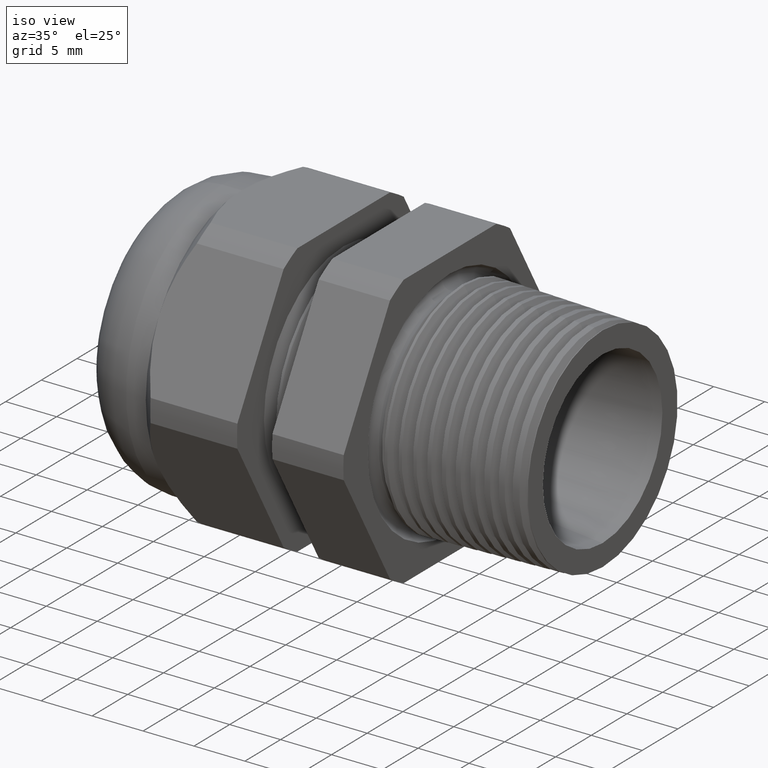
[diagram: clean part render]
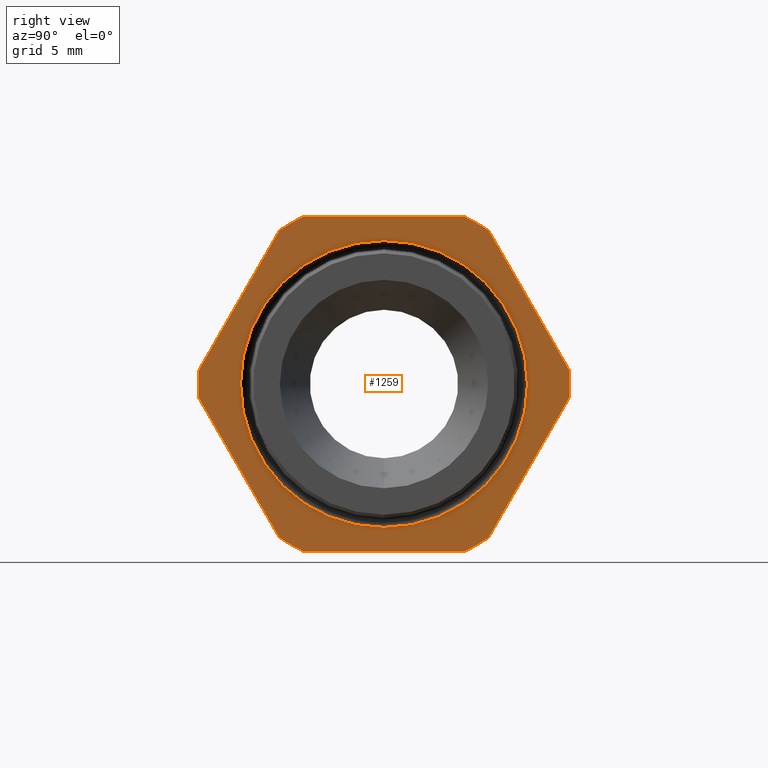
[diagram: tour spotlight — one face highlighted and labeled with its STEP entity id]
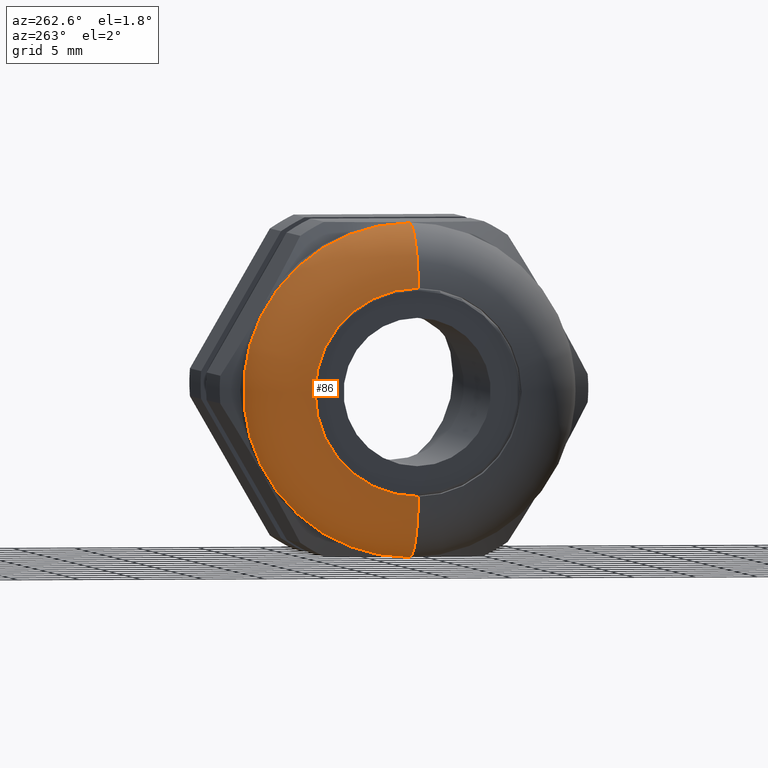
[diagram: tour spotlight — one face highlighted and labeled with its STEP entity id]
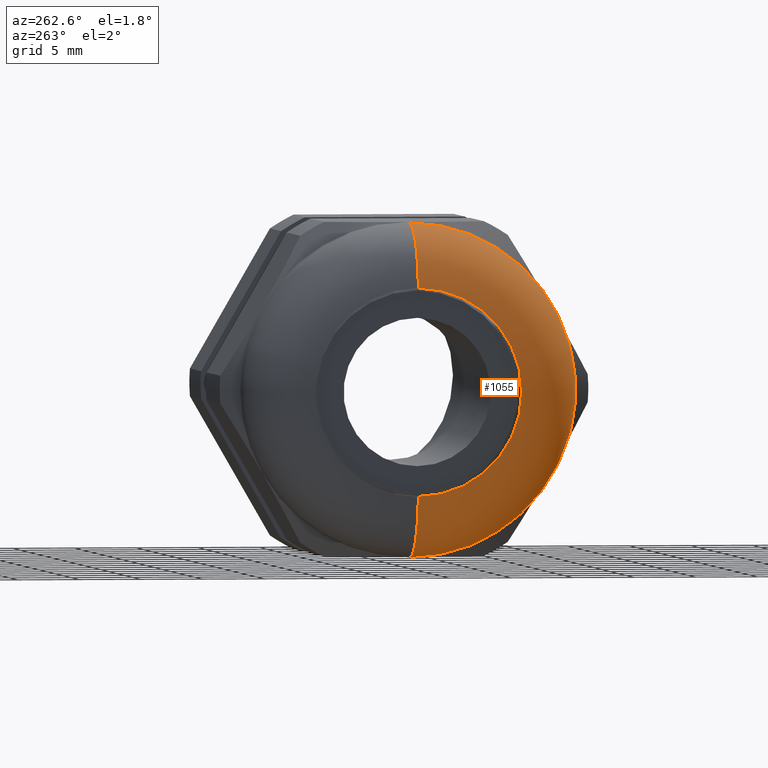
[diagram: tour spotlight — one face highlighted and labeled with its STEP entity id]
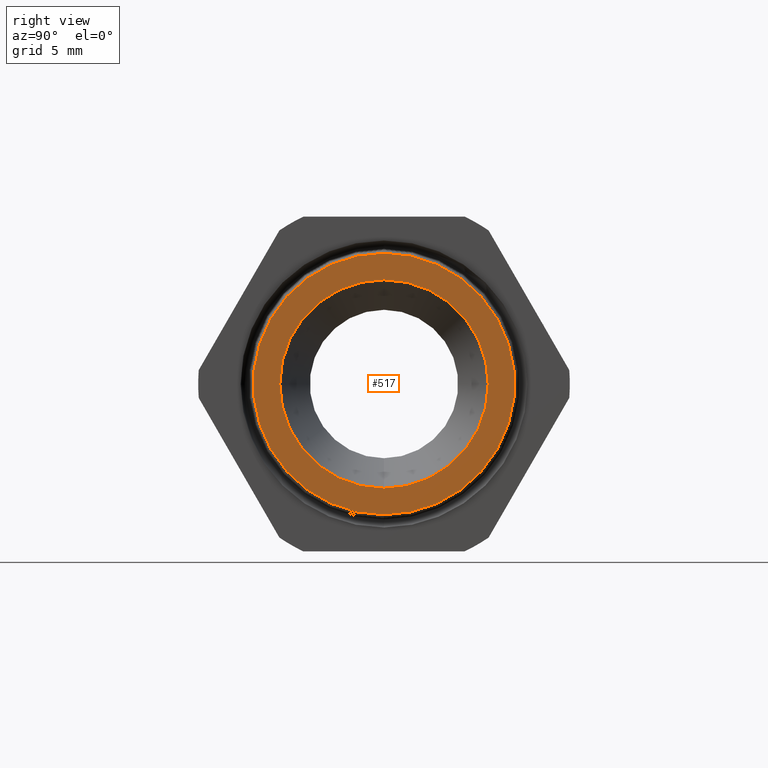
[diagram: tour spotlight — one face highlighted and labeled with its STEP entity id]
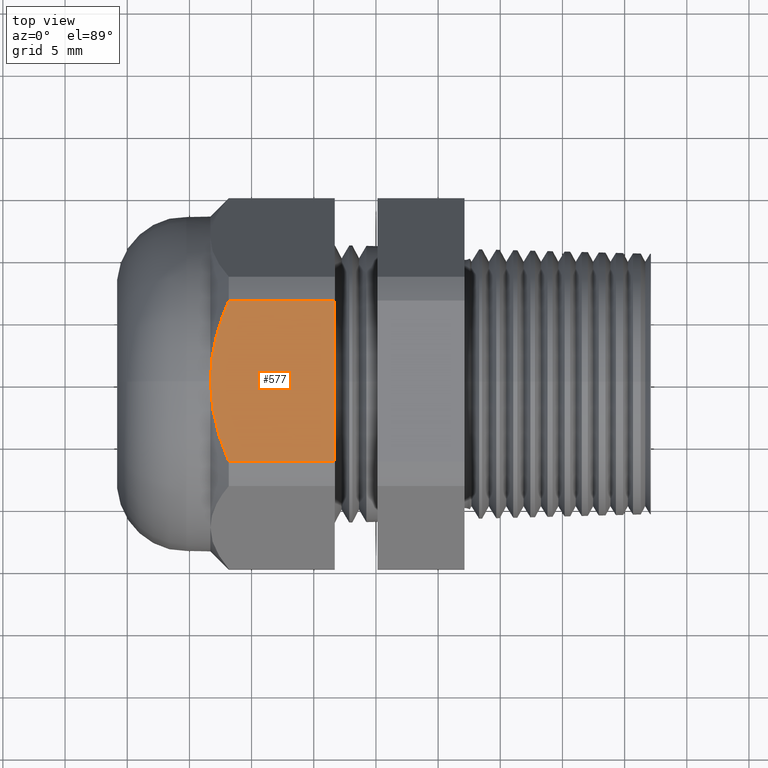
[diagram: tour spotlight — one face highlighted and labeled with its STEP entity id]
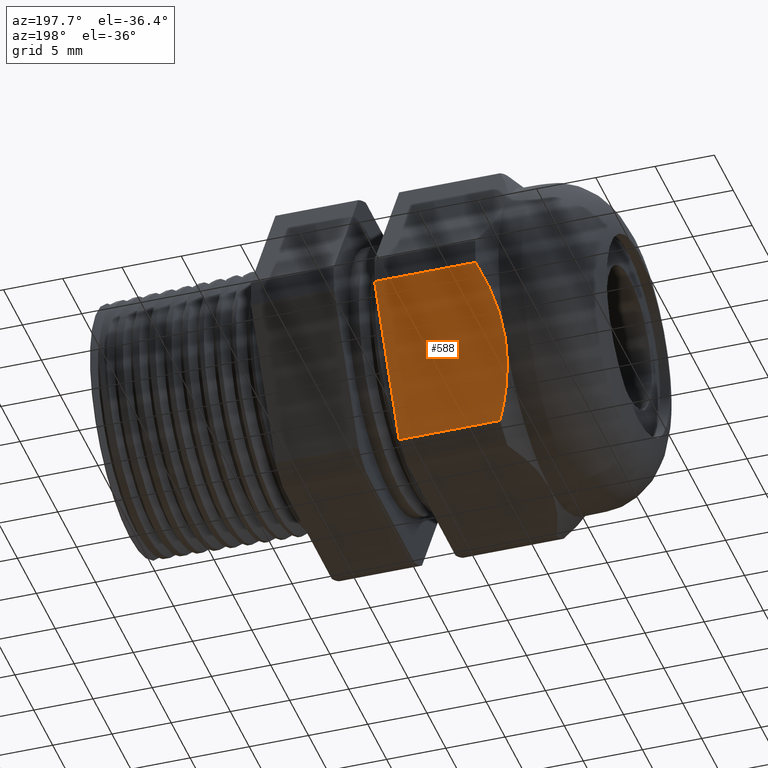
[diagram: tour spotlight — one face highlighted and labeled with its STEP entity id]
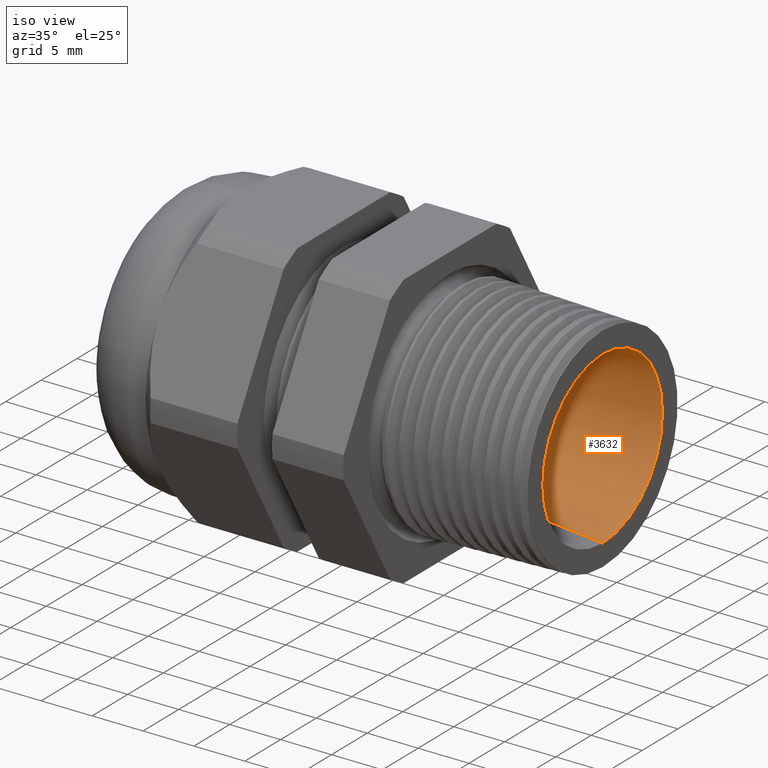
[diagram: tour spotlight — one face highlighted and labeled with its STEP entity id]
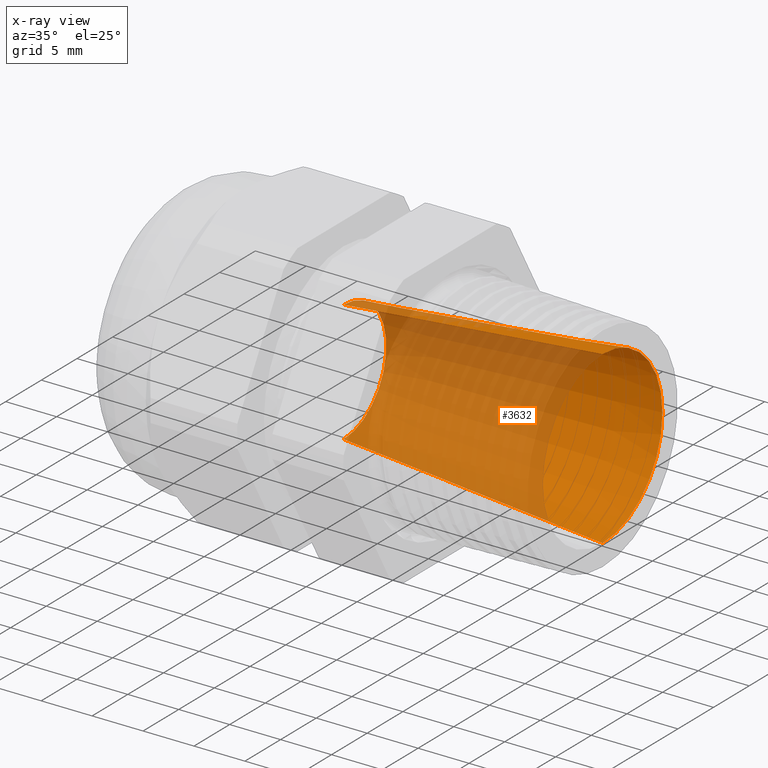
[diagram: x-ray of the same camera — body ghosted, this tour face saturated]
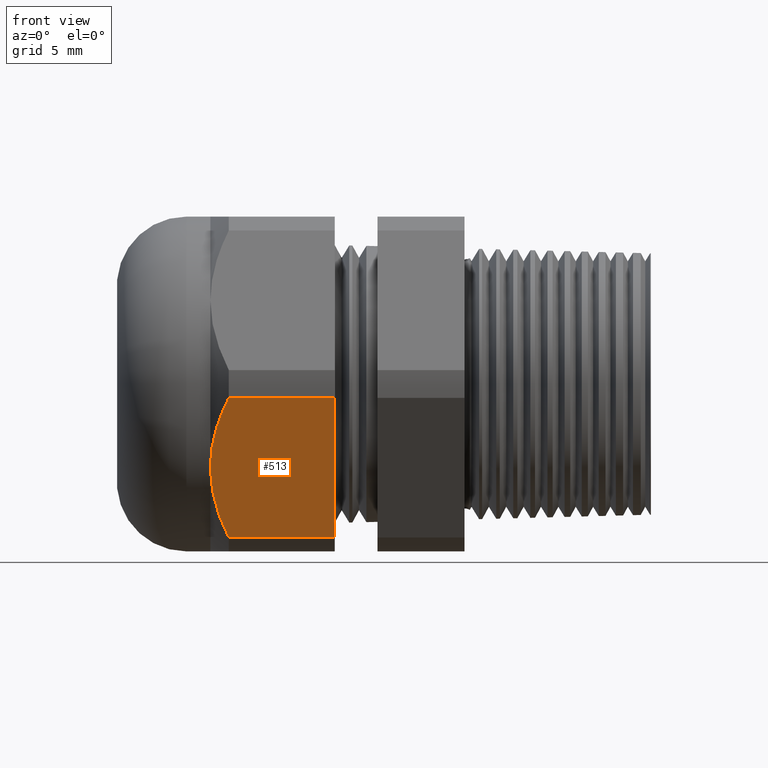
[diagram: tour spotlight — one face highlighted and labeled with its STEP entity id]
A machine part: a face-by-face anatomy tour. The part has 135 B-rep faces; the first image is the clean iso view, then the 8 largest visible faces are spotlighted one at a time (largest first), each with its STEP entity span.

Face 1 — right view, entity #1259. In plain terms, the highlighted planar face has unit normal (1, 0, 0).
Definition (entity closure, byte-faithful):
#87 = EDGE_CURVE ( 'NONE', #131, #129, #1436, .T. ) ;
#129 = VERTEX_POINT ( 'NONE', #1545 ) ;
#131 = VERTEX_POINT ( 'NONE', #1544 ) ;
#1142 = VERTEX_POINT ( 'NONE', #3345 ) ;
#1143 = ORIENTED_EDGE ( 'NONE', *, *, #1144, .T. ) ;
#1144 = EDGE_CURVE ( 'NONE', #1142, #1204, #3342, .T. ) ;
#1145 = EDGE_LOOP ( 'NONE', ( #1146, #1147 ) ) ;
#1146 = ORIENTED_EDGE ( 'NONE', *, *, #87, .T. ) ;
#1147 = ORIENTED_EDGE ( 'NONE', *, *, #1148, .T. ) ;
#1148 = EDGE_CURVE ( 'NONE', #129, #131, #3337, .T. ) ;
#1204 = VERTEX_POINT ( 'NONE', #3436 ) ;
#1205 = VERTEX_POINT ( 'NONE', #3435 ) ;
#1206 = ORIENTED_EDGE ( 'NONE', *, *, #1207, .T. ) ;
#1207 = EDGE_CURVE ( 'NONE', #1205, #1208, #3434, .T. ) ;
#1208 = VERTEX_POINT ( 'NONE', #3429 ) ;
#1209 = ORIENTED_EDGE ( 'NONE', *, *, #1210, .T. ) ;
#1210 = EDGE_CURVE ( 'NONE', #1208, #1211, #3428, .T. ) ;
#1211 = VERTEX_POINT ( 'NONE', #3424 ) ;
#1212 = ORIENTED_EDGE ( 'NONE', *, *, #1213, .T. ) ;
#1213 = EDGE_CURVE ( 'NONE', #1211, #1214, #3423, .T. ) ;
#1214 = VERTEX_POINT ( 'NONE', #3418 ) ;
#1215 = ORIENTED_EDGE ( 'NONE', *, *, #1216, .T. ) ;
#1216 = EDGE_CURVE ( 'NONE', #1214, #1217, #3417, .T. ) ;
#1217 = VERTEX_POINT ( 'NONE', #3413 ) ;
#1218 = ORIENTED_EDGE ( 'NONE', *, *, #1219, .T. ) ;
#1219 = EDGE_CURVE ( 'NONE', #1217, #1284, #3474, .T. ) ;
#1220 = ORIENTED_EDGE ( 'NONE', *, *, #1221, .T. ) ;
#1221 = EDGE_CURVE ( 'NONE', #1223, #1142, #3469, .T. ) ;
#1223 = VERTEX_POINT ( 'NONE', #3465 ) ;
#1259 = ADVANCED_FACE ( 'NONE', ( #3533, #3532 ), #3531, .T. ) ;
#1260 = EDGE_LOOP ( 'NONE', ( #1261, #1206, #1209, #1212, #1215, #1218, #1285, #1288, #1291, #1294, #1220, #1143 ) ) ;
#1261 = ORIENTED_EDGE ( 'NONE', *, *, #1262, .T. ) ;
#1262 = EDGE_CURVE ( 'NONE', #1204, #1205, #3526, .T. ) ;
#1284 = VERTEX_POINT ( 'NONE', #3522 ) ;
#1285 = ORIENTED_EDGE ( 'NONE', *, *, #1286, .T. ) ;
#1286 = EDGE_CURVE ( 'NONE', #1284, #1287, #3520, .T. ) ;
#1287 = VERTEX_POINT ( 'NONE', #3569 ) ;
#1288 = ORIENTED_EDGE ( 'NONE', *, *, #1289, .T. ) ;
#1289 = EDGE_CURVE ( 'NONE', #1287, #1290, #3568, .T. ) ;
#1290 = VERTEX_POINT ( 'NONE', #3563 ) ;
#1291 = ORIENTED_EDGE ( 'NONE', *, *, #1292, .T. ) ;
#1292 = EDGE_CURVE ( 'NONE', #1290, #1293, #3562, .T. ) ;
#1293 = VERTEX_POINT ( 'NONE', #3558 ) ;
#1294 = ORIENTED_EDGE ( 'NONE', *, *, #1295, .T. ) ;
#1295 = EDGE_CURVE ( 'NONE', #1293, #1223, #3556, .T. ) ;
#1432 = DIRECTION ( 'NONE',  ( 0.0000000000000000000, 0.0000000000000000000, -1.000000000000000000 ) ) ;
#1433 = DIRECTION ( 'NONE',  ( -1.000000000000000000, 0.0000000000000000000, 0.0000000000000000000 ) ) ;
#1434 = CARTESIAN_POINT ( 'NONE',  ( -0.3100000000000000000, 0.0000000000000000000, 0.0000000000000000000 ) ) ;
#1435 = AXIS2_PLACEMENT_3D ( 'NONE', #1434, #1433, #1432 ) ;
#1436 = CIRCLE ( 'NONE', #1435, 0.4542202963711205500 ) ;
#1544 = CARTESIAN_POINT ( 'NONE',  ( -0.3100000000000000000, 0.0000000000000000000, -0.4542202963711204900 ) ) ;
#1545 = CARTESIAN_POINT ( 'NONE',  ( -0.3100000000000000000, 5.562594320586549700E-017, 0.4542202963711204900 ) ) ;
#3334 = DIRECTION ( 'NONE',  ( 0.0000000000000000000, 0.0000000000000000000, -1.000000000000000000 ) ) ;
#3335 = DIRECTION ( 'NONE',  ( -1.000000000000000000, 0.0000000000000000000, 0.0000000000000000000 ) ) ;
#3336 = AXIS2_PLACEMENT_3D ( 'NONE', #3344, #3335, #3334 ) ;
#3337 = CIRCLE ( 'NONE', #3336, 0.4542202963711205500 ) ;
#3338 = DIRECTION ( 'NONE',  ( 0.0000000000000000000, 0.0000000000000000000, -1.000000000000000000 ) ) ;
#3339 = DIRECTION ( 'NONE',  ( 1.000000000000000000, 0.0000000000000000000, 0.0000000000000000000 ) ) ;
#3340 = CARTESIAN_POINT ( 'NONE',  ( -0.3100000000000000000, 0.0000000000000000000, 0.0000000000000000000 ) ) ;
#3341 = AXIS2_PLACEMENT_3D ( 'NONE', #3340, #3339, #3338 ) ;
#3342 = CIRCLE ( 'NONE', #3341, 0.5883000000000000500 ) ;
#3344 = CARTESIAN_POINT ( 'NONE',  ( -0.3100000000000000000, 0.0000000000000000000, 0.0000000000000000000 ) ) ;
#3345 = CARTESIAN_POINT ( 'NONE',  ( -0.3100000000000000000, 0.2553368167734530500, -0.5300000000000001400 ) ) ;
#3413 = CARTESIAN_POINT ( 'NONE',  ( -0.3100000000000000000, -0.2553368167734533800, 0.5300000000000000300 ) ) ;
#3414 = DIRECTION ( 'NONE',  ( 0.0000000000000000000, -1.000000000000000000, 0.0000000000000000000 ) ) ;
#3415 = VECTOR ( 'NONE', #3414, 39.37007874015748100 ) ;
#3416 = CARTESIAN_POINT ( 'NONE',  ( -0.3100000000000000000, 1.060000000000000100, 0.5300000000000001400 ) ) ;
#3417 = LINE ( 'NONE', #3416, #3415 ) ;
#3418 = CARTESIAN_POINT ( 'NONE',  ( -0.3100000000000000000, 0.2553368167734530500, 0.5300000000000001400 ) ) ;
#3419 = DIRECTION ( 'NONE',  ( 0.0000000000000000000, 0.0000000000000000000, -1.000000000000000000 ) ) ;
#3420 = DIRECTION ( 'NONE',  ( 1.000000000000000000, 0.0000000000000000000, 0.0000000000000000000 ) ) ;
#3421 = CARTESIAN_POINT ( 'NONE',  ( -0.3100000000000000000, 0.0000000000000000000, 0.0000000000000000000 ) ) ;
#3422 = AXIS2_PLACEMENT_3D ( 'NONE', #3421, #3420, #3419 ) ;
#3423 = CIRCLE ( 'NONE', #3422, 0.5882999999999999300 ) ;
#3424 = CARTESIAN_POINT ( 'NONE',  ( -0.3100000000000000000, 0.3313250556190263700, 0.4861281698472626500 ) ) ;
#3425 = DIRECTION ( 'NONE',  ( 0.0000000000000000000, -0.4999999999999998900, 0.8660254037844386000 ) ) ;
#3426 = VECTOR ( 'NONE', #3425, 39.37007874015748100 ) ;
#3427 = CARTESIAN_POINT ( 'NONE',  ( -0.3100000000000000000, 0.7239934640057524900, -0.1939934640057524300 ) ) ;
#3428 = LINE ( 'NONE', #3427, #3426 ) ;
#3429 = CARTESIAN_POINT ( 'NONE',  ( -0.3100000000000000000, 0.5866618723924790200, 0.04387183015273755900 ) ) ;
#3430 = DIRECTION ( 'NONE',  ( 0.0000000000000000000, 0.0000000000000000000, -1.000000000000000000 ) ) ;
#3431 = DIRECTION ( 'NONE',  ( 1.000000000000000000, 0.0000000000000000000, 0.0000000000000000000 ) ) ;
#3432 = CARTESIAN_POINT ( 'NONE',  ( -0.3100000000000000000, 0.0000000000000000000, 0.0000000000000000000 ) ) ;
#3433 = AXIS2_PLACEMENT_3D ( 'NONE', #3432, #3431, #3430 ) ;
#3434 = CIRCLE ( 'NONE', #3433, 0.5882999999999999300 ) ;
#3435 = CARTESIAN_POINT ( 'NONE',  ( -0.3100000000000000000, 0.5866618723924790200, -0.04387183015273743400 ) ) ;
#3436 = CARTESIAN_POINT ( 'NONE',  ( -0.3100000000000000000, 0.3313250556190265900, -0.4861281698472626500 ) ) ;
#3465 = CARTESIAN_POINT ( 'NONE',  ( -0.3100000000000000000, -0.2553368167734529900, -0.5300000000000001400 ) ) ;
#3466 = DIRECTION ( 'NONE',  ( 0.0000000000000000000, 1.000000000000000000, 0.0000000000000000000 ) ) ;
#3467 = VECTOR ( 'NONE', #3466, 39.37007874015748100 ) ;
#3468 = CARTESIAN_POINT ( 'NONE',  ( -0.3100000000000000000, 1.060000000000000100, -0.5300000000000001400 ) ) ;
#3469 = LINE ( 'NONE', #3468, #3467 ) ;
#3470 = DIRECTION ( 'NONE',  ( 0.0000000000000000000, 0.0000000000000000000, -1.000000000000000000 ) ) ;
#3471 = DIRECTION ( 'NONE',  ( 1.000000000000000000, 0.0000000000000000000, 0.0000000000000000000 ) ) ;
#3472 = CARTESIAN_POINT ( 'NONE',  ( -0.3100000000000000000, 0.0000000000000000000, 0.0000000000000000000 ) ) ;
#3473 = AXIS2_PLACEMENT_3D ( 'NONE', #3472, #3471, #3470 ) ;
#3474 = CIRCLE ( 'NONE', #3473, 0.5883000000000000500 ) ;
#3517 = DIRECTION ( 'NONE',  ( 0.0000000000000000000, -0.4999999999999996100, -0.8660254037844388200 ) ) ;
#3518 = VECTOR ( 'NONE', #3517, 39.37007874015748900 ) ;
#3519 = CARTESIAN_POINT ( 'NONE',  ( -0.3100000000000000000, -0.1939934640057528500, 0.7239934640057521500 ) ) ;
#3520 = LINE ( 'NONE', #3519, #3518 ) ;
#3522 = CARTESIAN_POINT ( 'NONE',  ( -0.3100000000000000000, -0.3313250556190262000, 0.4861281698472629300 ) ) ;
#3523 = DIRECTION ( 'NONE',  ( 0.0000000000000000000, 0.4999999999999997200, 0.8660254037844388200 ) ) ;
#3524 = VECTOR ( 'NONE', #3523, 39.37007874015748100 ) ;
#3525 = CARTESIAN_POINT ( 'NONE',  ( -0.3100000000000000000, 0.7239934640057524900, 0.1939934640057523200 ) ) ;
#3526 = LINE ( 'NONE', #3525, #3524 ) ;
#3527 = DIRECTION ( 'NONE',  ( 0.0000000000000000000, 0.0000000000000000000, -1.000000000000000000 ) ) ;
#3528 = DIRECTION ( 'NONE',  ( 1.000000000000000000, 0.0000000000000000000, 0.0000000000000000000 ) ) ;
#3529 = CARTESIAN_POINT ( 'NONE',  ( -0.3100000000000000000, 1.060000000000000100, 0.0000000000000000000 ) ) ;
#3530 = AXIS2_PLACEMENT_3D ( 'NONE', #3529, #3528, #3527 ) ;
#3531 = PLANE ( 'NONE',  #3530 ) ;
#3532 = FACE_BOUND ( 'NONE', #1145, .T. ) ;
#3533 = FACE_OUTER_BOUND ( 'NONE', #1260, .T. ) ;
#3552 = DIRECTION ( 'NONE',  ( 0.0000000000000000000, 0.0000000000000000000, -1.000000000000000000 ) ) ;
#3553 = DIRECTION ( 'NONE',  ( 1.000000000000000000, 0.0000000000000000000, 0.0000000000000000000 ) ) ;
#3554 = CARTESIAN_POINT ( 'NONE',  ( -0.3100000000000000000, 0.0000000000000000000, 0.0000000000000000000 ) ) ;
#3555 = AXIS2_PLACEMENT_3D ( 'NONE', #3554, #3553, #3552 ) ;
#3556 = CIRCLE ( 'NONE', #3555, 0.5883000000000001600 ) ;
#3558 = CARTESIAN_POINT ( 'NONE',  ( -0.3100000000000000000, -0.3313250556190261400, -0.4861281698472629800 ) ) ;
#3559 = DIRECTION ( 'NONE',  ( 0.0000000000000000000, 0.5000000000000000000, -0.8660254037844386000 ) ) ;
#3560 = VECTOR ( 'NONE', #3559, 39.37007874015748900 ) ;
#3561 = CARTESIAN_POINT ( 'NONE',  ( -0.3100000000000000000, -0.1939934640057525700, -0.7239934640057527100 ) ) ;
#3562 = LINE ( 'NONE', #3561, #3560 ) ;
#3563 = CARTESIAN_POINT ( 'NONE',  ( -0.3100000000000000000, -0.5866618723924791300, -0.04387183015273746200 ) ) ;
#3564 = DIRECTION ( 'NONE',  ( 0.0000000000000000000, 0.0000000000000000000, -1.000000000000000000 ) ) ;
#3565 = DIRECTION ( 'NONE',  ( 1.000000000000000000, 0.0000000000000000000, 0.0000000000000000000 ) ) ;
#3566 = CARTESIAN_POINT ( 'NONE',  ( -0.3100000000000000000, 0.0000000000000000000, 0.0000000000000000000 ) ) ;
#3567 = AXIS2_PLACEMENT_3D ( 'NONE', #3566, #3565, #3564 ) ;
#3568 = CIRCLE ( 'NONE', #3567, 0.5883000000000001600 ) ;
#3569 = CARTESIAN_POINT ( 'NONE',  ( -0.3100000000000000000, -0.5866618723924792400, 0.04387183015273651800 ) ) ;

Face 2 — auxiliary view, entity #86. In plain terms, the highlighted toroidal blend (fillet) surface has major radius 7.874 mm and minor (blend) radius 5.588 mm.
Definition (entity closure, byte-faithful):
#67 = VERTEX_POINT ( 'NONE', #1416 ) ;
#75 = VERTEX_POINT ( 'NONE', #1401 ) ;
#76 = ORIENTED_EDGE ( 'NONE', *, *, #77, .T. ) ;
#77 = EDGE_CURVE ( 'NONE', #75, #67, #1400, .T. ) ;
#79 = ORIENTED_EDGE ( 'NONE', *, *, #84, .F. ) ;
#80 = EDGE_LOOP ( 'NONE', ( #79, #82, #76, #152 ) ) ;
#81 = EDGE_CURVE ( 'NONE', #88, #75, #1453, .T. ) ;
#82 = ORIENTED_EDGE ( 'NONE', *, *, #81, .T. ) ;
#84 = EDGE_CURVE ( 'NONE', #88, #85, #1448, .T. ) ;
#85 = VERTEX_POINT ( 'NONE', #1443 ) ;
#86 = ADVANCED_FACE ( 'NONE', ( #1442 ), #1441, .T. ) ;
#88 = VERTEX_POINT ( 'NONE', #1431 ) ;
#151 = EDGE_CURVE ( 'NONE', #85, #67, #1561, .T. ) ;
#152 = ORIENTED_EDGE ( 'NONE', *, *, #151, .F. ) ;
#1396 = DIRECTION ( 'NONE',  ( 0.0000000000000000000, 0.0000000000000000000, -1.000000000000000000 ) ) ;
#1397 = DIRECTION ( 'NONE',  ( 1.000000000000000000, 0.0000000000000000000, 0.0000000000000000000 ) ) ;
#1398 = CARTESIAN_POINT ( 'NONE',  ( -1.409999999999999900, 0.0000000000000000000, 0.0000000000000000000 ) ) ;
#1399 = AXIS2_PLACEMENT_3D ( 'NONE', #1398, #1397, #1396 ) ;
#1400 = CIRCLE ( 'NONE', #1399, 0.3300000000000000200 ) ;
#1401 = CARTESIAN_POINT ( 'NONE',  ( -1.409999999999999900, 0.0000000000000000000, -0.3300000000000000200 ) ) ;
#1416 = CARTESIAN_POINT ( 'NONE',  ( -1.409999999999999900, 4.041334437186265900E-017, 0.3300000000000000200 ) ) ;
#1431 = CARTESIAN_POINT ( 'NONE',  ( -1.190910976997933600, 0.0000000000000000000, -0.5300000000000001400 ) ) ;
#1437 = DIRECTION ( 'NONE',  ( 0.0000000000000000000, 0.0000000000000000000, 1.000000000000000000 ) ) ;
#1438 = DIRECTION ( 'NONE',  ( -1.000000000000000000, 0.0000000000000000000, 0.0000000000000000000 ) ) ;
#1439 = CARTESIAN_POINT ( 'NONE',  ( -1.190910976997933600, 0.0000000000000000000, 0.0000000000000000000 ) ) ;
#1440 = AXIS2_PLACEMENT_3D ( 'NONE', #1439, #1438, #1437 ) ;
#1441 = TOROIDAL_SURFACE ( 'NONE', #1440, 0.3100000000000001100, 0.2200000000000000000 ) ;
#1442 = FACE_OUTER_BOUND ( 'NONE', #80, .T. ) ;
#1443 = CARTESIAN_POINT ( 'NONE',  ( -1.190910976997933600, 6.490628035480972400E-017, 0.5300000000000001400 ) ) ;
#1444 = DIRECTION ( 'NONE',  ( 0.0000000000000000000, 0.0000000000000000000, 1.000000000000000000 ) ) ;
#1445 = DIRECTION ( 'NONE',  ( 1.000000000000000000, 0.0000000000000000000, 0.0000000000000000000 ) ) ;
#1446 = CARTESIAN_POINT ( 'NONE',  ( -1.190910976997933600, 0.0000000000000000000, 0.0000000000000000000 ) ) ;
#1447 = AXIS2_PLACEMENT_3D ( 'NONE', #1446, #1445, #1444 ) ;
#1448 = CIRCLE ( 'NONE', #1447, 0.5300000000000001400 ) ;
#1449 = DIRECTION ( 'NONE',  ( 0.0000000000000000000, -1.224646799147353200E-016, 1.000000000000000000 ) ) ;
#1450 = DIRECTION ( 'NONE',  ( 0.0000000000000000000, 1.000000000000000000, 1.224646799147353200E-016 ) ) ;
#1451 = CARTESIAN_POINT ( 'NONE',  ( -1.190910976997933600, 3.796405077356796400E-017, -0.3100000000000001100 ) ) ;
#1452 = AXIS2_PLACEMENT_3D ( 'NONE', #1451, #1450, #1449 ) ;
#1453 = CIRCLE ( 'NONE', #1452, 0.2200000000000000000 ) ;
#1557 = DIRECTION ( 'NONE',  ( 0.0000000000000000000, 0.0000000000000000000, -1.000000000000000000 ) ) ;
#1558 = DIRECTION ( 'NONE',  ( 0.0000000000000000000, -1.000000000000000000, 0.0000000000000000000 ) ) ;
#1559 = CARTESIAN_POINT ( 'NONE',  ( -1.190910976997933600, 0.0000000000000000000, 0.3100000000000001100 ) ) ;
#1560 = AXIS2_PLACEMENT_3D ( 'NONE', #1559, #1558, #1557 ) ;
#1561 = CIRCLE ( 'NONE', #1560, 0.2200000000000000000 ) ;

Face 3 — auxiliary view, entity #1055. In plain terms, the highlighted toroidal blend (fillet) surface has major radius 7.874 mm and minor (blend) radius 5.588 mm.
Definition (entity closure, byte-faithful):
#67 = VERTEX_POINT ( 'NONE', #1416 ) ;
#75 = VERTEX_POINT ( 'NONE', #1401 ) ;
#81 = EDGE_CURVE ( 'NONE', #88, #75, #1453, .T. ) ;
#85 = VERTEX_POINT ( 'NONE', #1443 ) ;
#88 = VERTEX_POINT ( 'NONE', #1431 ) ;
#151 = EDGE_CURVE ( 'NONE', #85, #67, #1561, .T. ) ;
#288 = EDGE_CURVE ( 'NONE', #67, #75, #1814, .T. ) ;
#699 = EDGE_CURVE ( 'NONE', #85, #88, #2655, .T. ) ;
#1038 = ORIENTED_EDGE ( 'NONE', *, *, #288, .T. ) ;
#1055 = ADVANCED_FACE ( 'NONE', ( #3164 ), #3163, .T. ) ;
#1056 = EDGE_LOOP ( 'NONE', ( #1057, #1058, #1059, #1038 ) ) ;
#1057 = ORIENTED_EDGE ( 'NONE', *, *, #81, .F. ) ;
#1058 = ORIENTED_EDGE ( 'NONE', *, *, #699, .F. ) ;
#1059 = ORIENTED_EDGE ( 'NONE', *, *, #151, .T. ) ;
#1401 = CARTESIAN_POINT ( 'NONE',  ( -1.409999999999999900, 0.0000000000000000000, -0.3300000000000000200 ) ) ;
#1416 = CARTESIAN_POINT ( 'NONE',  ( -1.409999999999999900, 4.041334437186265900E-017, 0.3300000000000000200 ) ) ;
#1431 = CARTESIAN_POINT ( 'NONE',  ( -1.190910976997933600, 0.0000000000000000000, -0.5300000000000001400 ) ) ;
#1443 = CARTESIAN_POINT ( 'NONE',  ( -1.190910976997933600, 6.490628035480972400E-017, 0.5300000000000001400 ) ) ;
#1449 = DIRECTION ( 'NONE',  ( 0.0000000000000000000, -1.224646799147353200E-016, 1.000000000000000000 ) ) ;
#1450 = DIRECTION ( 'NONE',  ( 0.0000000000000000000, 1.000000000000000000, 1.224646799147353200E-016 ) ) ;
#1451 = CARTESIAN_POINT ( 'NONE',  ( -1.190910976997933600, 3.796405077356796400E-017, -0.3100000000000001100 ) ) ;
#1452 = AXIS2_PLACEMENT_3D ( 'NONE', #1451, #1450, #1449 ) ;
#1453 = CIRCLE ( 'NONE', #1452, 0.2200000000000000000 ) ;
#1557 = DIRECTION ( 'NONE',  ( 0.0000000000000000000, 0.0000000000000000000, -1.000000000000000000 ) ) ;
#1558 = DIRECTION ( 'NONE',  ( 0.0000000000000000000, -1.000000000000000000, 0.0000000000000000000 ) ) ;
#1559 = CARTESIAN_POINT ( 'NONE',  ( -1.190910976997933600, 0.0000000000000000000, 0.3100000000000001100 ) ) ;
#1560 = AXIS2_PLACEMENT_3D ( 'NONE', #1559, #1558, #1557 ) ;
#1561 = CIRCLE ( 'NONE', #1560, 0.2200000000000000000 ) ;
#1810 = DIRECTION ( 'NONE',  ( 0.0000000000000000000, 0.0000000000000000000, -1.000000000000000000 ) ) ;
#1811 = DIRECTION ( 'NONE',  ( 1.000000000000000000, 0.0000000000000000000, 0.0000000000000000000 ) ) ;
#1812 = CARTESIAN_POINT ( 'NONE',  ( -1.409999999999999900, 0.0000000000000000000, 0.0000000000000000000 ) ) ;
#1813 = AXIS2_PLACEMENT_3D ( 'NONE', #1812, #1811, #1810 ) ;
#1814 = CIRCLE ( 'NONE', #1813, 0.3300000000000000200 ) ;
#2647 = DIRECTION ( 'NONE',  ( 0.0000000000000000000, 0.0000000000000000000, 1.000000000000000000 ) ) ;
#2648 = DIRECTION ( 'NONE',  ( 1.000000000000000000, 0.0000000000000000000, 0.0000000000000000000 ) ) ;
#2649 = CARTESIAN_POINT ( 'NONE',  ( -1.190910976997933600, 0.0000000000000000000, 0.0000000000000000000 ) ) ;
#2650 = AXIS2_PLACEMENT_3D ( 'NONE', #2649, #2648, #2647 ) ;
#2655 = CIRCLE ( 'NONE', #2650, 0.5300000000000001400 ) ;
#3160 = DIRECTION ( 'NONE',  ( 0.0000000000000000000, 0.0000000000000000000, 1.000000000000000000 ) ) ;
#3161 = DIRECTION ( 'NONE',  ( -1.000000000000000000, 0.0000000000000000000, 0.0000000000000000000 ) ) ;
#3162 = AXIS2_PLACEMENT_3D ( 'NONE', #3168, #3161, #3160 ) ;
#3163 = TOROIDAL_SURFACE ( 'NONE', #3162, 0.3100000000000001100, 0.2200000000000000000 ) ;
#3164 = FACE_OUTER_BOUND ( 'NONE', #1056, .T. ) ;
#3168 = CARTESIAN_POINT ( 'NONE',  ( -1.190910976997933600, 0.0000000000000000000, 0.0000000000000000000 ) ) ;

Face 4 — right view, entity #517. In plain terms, the highlighted planar face has unit normal (1, 0, 0).
Definition (entity closure, byte-faithful):
#47 = VERTEX_POINT ( 'NONE', #1331 ) ;
#49 = VERTEX_POINT ( 'NONE', #1390 ) ;
#299 = VERTEX_POINT ( 'NONE', #1845 ) ;
#301 = VERTEX_POINT ( 'NONE', #1844 ) ;
#302 = EDGE_CURVE ( 'NONE', #299, #301, #1842, .T. ) ;
#308 = EDGE_CURVE ( 'NONE', #47, #49, #1890, .T. ) ;
#497 = EDGE_LOOP ( 'NONE', ( #3722, #3723 ) ) ;
#517 = ADVANCED_FACE ( 'NONE', ( #2259, #2258 ), #2257, .T. ) ;
#534 = EDGE_CURVE ( 'NONE', #301, #299, #2342, .T. ) ;
#1331 = CARTESIAN_POINT ( 'NONE',  ( 0.2800000000000000300, 4.041334437186266500E-017, 0.3300000000000000200 ) ) ;
#1390 = CARTESIAN_POINT ( 'NONE',  ( 0.2800000000000000300, 0.0000000000000000000, -0.3300000000000000200 ) ) ;
#1838 = DIRECTION ( 'NONE',  ( 0.0000000000000000000, 0.0000000000000000000, -1.000000000000000000 ) ) ;
#1839 = DIRECTION ( 'NONE',  ( 1.000000000000000000, 0.0000000000000000000, 0.0000000000000000000 ) ) ;
#1840 = CARTESIAN_POINT ( 'NONE',  ( 0.2800000000000000300, 0.0000000000000000000, 0.0000000000000000000 ) ) ;
#1841 = AXIS2_PLACEMENT_3D ( 'NONE', #1840, #1839, #1838 ) ;
#1842 = CIRCLE ( 'NONE', #1841, 0.4137872739441745800 ) ;
#1844 = CARTESIAN_POINT ( 'NONE',  ( 0.2800000000000000300, 0.0000000000000000000, 0.4137872739441745800 ) ) ;
#1845 = CARTESIAN_POINT ( 'NONE',  ( 0.2800000000000000300, 5.067835728063125900E-017, -0.4137872739441745800 ) ) ;
#1886 = DIRECTION ( 'NONE',  ( 0.0000000000000000000, 0.0000000000000000000, -1.000000000000000000 ) ) ;
#1887 = DIRECTION ( 'NONE',  ( 1.000000000000000000, 0.0000000000000000000, 0.0000000000000000000 ) ) ;
#1888 = CARTESIAN_POINT ( 'NONE',  ( 0.2800000000000000300, 0.0000000000000000000, 0.0000000000000000000 ) ) ;
#1889 = AXIS2_PLACEMENT_3D ( 'NONE', #1888, #1887, #1886 ) ;
#1890 = CIRCLE ( 'NONE', #1889, 0.3300000000000000200 ) ;
#2253 = DIRECTION ( 'NONE',  ( 0.0000000000000000000, 0.0000000000000000000, -1.000000000000000000 ) ) ;
#2254 = DIRECTION ( 'NONE',  ( 1.000000000000000000, 0.0000000000000000000, 0.0000000000000000000 ) ) ;
#2255 = CARTESIAN_POINT ( 'NONE',  ( 0.2800000000000000300, 0.3300000000000000200, 0.0000000000000000000 ) ) ;
#2256 = AXIS2_PLACEMENT_3D ( 'NONE', #2255, #2254, #2253 ) ;
#2257 = PLANE ( 'NONE',  #2256 ) ;
#2258 = FACE_BOUND ( 'NONE', #3718, .T. ) ;
#2259 = FACE_OUTER_BOUND ( 'NONE', #497, .T. ) ;
#2338 = DIRECTION ( 'NONE',  ( 0.0000000000000000000, 0.0000000000000000000, -1.000000000000000000 ) ) ;
#2339 = DIRECTION ( 'NONE',  ( 1.000000000000000000, 0.0000000000000000000, 0.0000000000000000000 ) ) ;
#2340 = CARTESIAN_POINT ( 'NONE',  ( 0.2800000000000000300, 0.0000000000000000000, 0.0000000000000000000 ) ) ;
#2341 = AXIS2_PLACEMENT_3D ( 'NONE', #2340, #2339, #2338 ) ;
#2342 = CIRCLE ( 'NONE', #2341, 0.4137872739441745800 ) ;
#3593 = DIRECTION ( 'NONE',  ( 0.0000000000000000000, 0.0000000000000000000, -1.000000000000000000 ) ) ;
#3594 = DIRECTION ( 'NONE',  ( 1.000000000000000000, 0.0000000000000000000, 0.0000000000000000000 ) ) ;
#3595 = CARTESIAN_POINT ( 'NONE',  ( 0.2800000000000000300, 0.0000000000000000000, 0.0000000000000000000 ) ) ;
#3596 = AXIS2_PLACEMENT_3D ( 'NONE', #3595, #3594, #3593 ) ;
#3600 = CIRCLE ( 'NONE', #3596, 0.3300000000000000200 ) ;
#3718 = EDGE_LOOP ( 'NONE', ( #3719, #3721 ) ) ;
#3719 = ORIENTED_EDGE ( 'NONE', *, *, #3720, .F. ) ;
#3720 = EDGE_CURVE ( 'NONE', #49, #47, #3600, .T. ) ;
#3721 = ORIENTED_EDGE ( 'NONE', *, *, #308, .F. ) ;
#3722 = ORIENTED_EDGE ( 'NONE', *, *, #534, .T. ) ;
#3723 = ORIENTED_EDGE ( 'NONE', *, *, #302, .T. ) ;

Face 5 — top view, entity #577. In plain terms, the highlighted planar face has unit normal (0, 0, 1).
Definition (entity closure, byte-faithful):
#292 = VERTEX_POINT ( 'NONE', #1860 ) ;
#565 = EDGE_CURVE ( 'NONE', #568, #292, #2402, .T. ) ;
#566 = ORIENTED_EDGE ( 'NONE', *, *, #623, .T. ) ;
#567 = VERTEX_POINT ( 'NONE', #2401 ) ;
#568 = VERTEX_POINT ( 'NONE', #2403 ) ;
#570 = ORIENTED_EDGE ( 'NONE', *, *, #565, .T. ) ;
#577 = ADVANCED_FACE ( 'NONE', ( #2373 ), #2378, .T. ) ;
#578 = EDGE_LOOP ( 'NONE', ( #579, #570, #566, #624, #611 ) ) ;
#579 = ORIENTED_EDGE ( 'NONE', *, *, #580, .T. ) ;
#580 = EDGE_CURVE ( 'NONE', #595, #568, #2429, .T. ) ;
#595 = VERTEX_POINT ( 'NONE', #2461 ) ;
#603 = EDGE_CURVE ( 'NONE', #595, #625, #2483, .T. ) ;
#610 = EDGE_CURVE ( 'NONE', #625, #567, #2506, .T. ) ;
#611 = ORIENTED_EDGE ( 'NONE', *, *, #603, .F. ) ;
#623 = EDGE_CURVE ( 'NONE', #292, #567, #2534, .T. ) ;
#624 = ORIENTED_EDGE ( 'NONE', *, *, #610, .F. ) ;
#625 = VERTEX_POINT ( 'NONE', #2535 ) ;
#1860 = CARTESIAN_POINT ( 'NONE',  ( -1.114724409448818900, 0.0000000000000000000, 0.5300000000000001400 ) ) ;
#2373 = FACE_OUTER_BOUND ( 'NONE', #578, .T. ) ;
#2378 = PLANE ( 'NONE',  #2433 ) ;
#2391 = CARTESIAN_POINT ( 'NONE',  ( -1.114724409448818900, 0.0000000000000000000, 0.5300000000000001400 ) ) ;
#2392 = CARTESIAN_POINT ( 'NONE',  ( -1.114724409448819300, 0.04442461113430309900, 0.5300000000000002500 ) ) ;
#2393 = CARTESIAN_POINT ( 'NONE',  ( -1.109077948923239000, 0.08790338043595157000, 0.5300000000000001400 ) ) ;
#2394 = CARTESIAN_POINT ( 'NONE',  ( -1.093806833574185100, 0.1517815661146135500, 0.5300000000000000300 ) ) ;
#2395 = CARTESIAN_POINT ( 'NONE',  ( -1.087591624396693900, 0.1728653463301442500, 0.5299999999999999200 ) ) ;
#2396 = CARTESIAN_POINT ( 'NONE',  ( -1.073235192627068900, 0.2146751329927177300, 0.5300000000000001400 ) ) ;
#2397 = CARTESIAN_POINT ( 'NONE',  ( -1.065149854951445500, 0.2352332545294326700, 0.5300000000000001400 ) ) ;
#2398 = CARTESIAN_POINT ( 'NONE',  ( -1.056424409448819100, 0.2553368167734530500, 0.5300000000000001400 ) ) ;
#2401 = CARTESIAN_POINT ( 'NONE',  ( -1.056424409448819100, -0.2553368167734533800, 0.5300000000000000300 ) ) ;
#2402 = B_SPLINE_CURVE_WITH_KNOTS ( 'NONE', 3,
 ( #2398, #2397, #2396, #2395, #2394, #2393, #2392, #2391 ),
 .UNSPECIFIED., .F., .F.,
 ( 4, 2, 2, 4 ),
 ( 0.01004766229894866500, 0.01170587669684982000, 0.01336409109475097400, 0.01668051989055328500 ),
 .UNSPECIFIED. ) ;
#2403 = CARTESIAN_POINT ( 'NONE',  ( -1.056424409448819100, 0.2553368167734530500, 0.5300000000000001400 ) ) ;
#2426 = DIRECTION ( 'NONE',  ( -1.000000000000000000, 0.0000000000000000000, 0.0000000000000000000 ) ) ;
#2427 = VECTOR ( 'NONE', #2426, 39.37007874015748100 ) ;
#2428 = CARTESIAN_POINT ( 'NONE',  ( 0.2800000000000000300, 0.2553368167734530500, 0.5300000000000001400 ) ) ;
#2429 = LINE ( 'NONE', #2428, #2427 ) ;
#2430 = DIRECTION ( 'NONE',  ( 1.000000000000000000, 0.0000000000000000000, 0.0000000000000000000 ) ) ;
#2431 = DIRECTION ( 'NONE',  ( 0.0000000000000000000, 0.0000000000000000000, 1.000000000000000000 ) ) ;
#2432 = CARTESIAN_POINT ( 'NONE',  ( 0.2800000000000000300, -0.2553368167734530500, 0.5300000000000001400 ) ) ;
#2433 = AXIS2_PLACEMENT_3D ( 'NONE', #2432, #2431, #2430 ) ;
#2461 = CARTESIAN_POINT ( 'NONE',  ( -0.7210236220472440200, 0.2553368167734530500, 0.5300000000000001400 ) ) ;
#2470 = DIRECTION ( 'NONE',  ( 0.0000000000000000000, -1.000000000000000000, 0.0000000000000000000 ) ) ;
#2471 = VECTOR ( 'NONE', #2470, 39.37007874015748100 ) ;
#2472 = CARTESIAN_POINT ( 'NONE',  ( -0.7210236220472440200, 0.4400000000000000000, 0.5300000000000001400 ) ) ;
#2483 = LINE ( 'NONE', #2472, #2471 ) ;
#2503 = DIRECTION ( 'NONE',  ( -1.000000000000000000, 0.0000000000000000000, 0.0000000000000000000 ) ) ;
#2504 = VECTOR ( 'NONE', #2503, 39.37007874015748100 ) ;
#2505 = CARTESIAN_POINT ( 'NONE',  ( 0.2800000000000000300, -0.2553368167734533800, 0.5300000000000000300 ) ) ;
#2506 = LINE ( 'NONE', #2505, #2504 ) ;
#2525 = CARTESIAN_POINT ( 'NONE',  ( -1.056424409448819100, -0.2553368167734533800, 0.5300000000000000300 ) ) ;
#2526 = CARTESIAN_POINT ( 'NONE',  ( -1.065160323084658000, -0.2352091357875819600, 0.5300000000000001400 ) ) ;
#2527 = CARTESIAN_POINT ( 'NONE',  ( -1.073259737990255100, -0.2146094092825772400, 0.5300000000000001400 ) ) ;
#2528 = CARTESIAN_POINT ( 'NONE',  ( -1.087608700860912800, -0.1728098393691076300, 0.5300000000000000300 ) ) ;
#2529 = CARTESIAN_POINT ( 'NONE',  ( -1.093820381180306400, -0.1517316267221620300, 0.5300000000000001400 ) ) ;
#2530 = CARTESIAN_POINT ( 'NONE',  ( -1.109082259597364600, -0.08787186943844435500, 0.5300000000000001400 ) ) ;
#2531 = CARTESIAN_POINT ( 'NONE',  ( -1.114724409448818900, -0.04445874038965416700, 0.5300000000000001400 ) ) ;
#2532 = CARTESIAN_POINT ( 'NONE',  ( -1.114724409448818900, 0.0000000000000000000, 0.5300000000000001400 ) ) ;
#2534 = B_SPLINE_CURVE_WITH_KNOTS ( 'NONE', 3,
 ( #2532, #2531, #2530, #2529, #2528, #2527, #2526, #2525 ),
 .UNSPECIFIED., .F., .F.,
 ( 4, 2, 2, 4 ),
 ( 0.01668051989055328500, 0.01999949653634990100, 0.02165898485924820600, 0.02331847318214651600 ),
 .UNSPECIFIED. ) ;
#2535 = CARTESIAN_POINT ( 'NONE',  ( -0.7210236220472440200, -0.2553368167734533800, 0.5300000000000000300 ) ) ;

Face 6 — auxiliary view, entity #588. In plain terms, the highlighted planar face has unit normal (0, 0.866, -0.5).
Definition (entity closure, byte-faithful):
#540 = ORIENTED_EDGE ( 'NONE', *, *, #886, .T. ) ;
#587 = EDGE_LOOP ( 'NONE', ( #540, #591, #589, #881, #883 ) ) ;
#588 = ADVANCED_FACE ( 'NONE', ( #2416 ), #2415, .T. ) ;
#589 = ORIENTED_EDGE ( 'NONE', *, *, #592, .T. ) ;
#590 = EDGE_CURVE ( 'NONE', #887, #675, #2408, .T. ) ;
#591 = ORIENTED_EDGE ( 'NONE', *, *, #590, .T. ) ;
#592 = EDGE_CURVE ( 'NONE', #675, #1242, #2452, .T. ) ;
#675 = VERTEX_POINT ( 'NONE', #2621 ) ;
#881 = ORIENTED_EDGE ( 'NONE', *, *, #1239, .F. ) ;
#882 = EDGE_CURVE ( 'NONE', #890, #1241, #2962, .T. ) ;
#883 = ORIENTED_EDGE ( 'NONE', *, *, #882, .F. ) ;
#886 = EDGE_CURVE ( 'NONE', #890, #887, #2948, .T. ) ;
#887 = VERTEX_POINT ( 'NONE', #2944 ) ;
#890 = VERTEX_POINT ( 'NONE', #2938 ) ;
#1239 = EDGE_CURVE ( 'NONE', #1241, #1242, #3503, .T. ) ;
#1241 = VERTEX_POINT ( 'NONE', #3499 ) ;
#1242 = VERTEX_POINT ( 'NONE', #3498 ) ;
#2408 = B_SPLINE_CURVE_WITH_KNOTS ( 'NONE', 3,
 ( #2410, #2409, #2460, #2459, #2458, #2457, #2456, #2455, #2454, #2453 ),
 .UNSPECIFIED., .F., .F.,
 ( 4, 2, 2, 2, 4 ),
 ( 2.483250567272424900E-007, 0.003328456037203353700, 0.004992559893276670200, 0.005824611821313331100, 0.006656663749349991100 ),
 .UNSPECIFIED. ) ;
#2409 = CARTESIAN_POINT ( 'NONE',  ( -1.074054294306376200, 0.3516348201738638800, -0.4509506257485226300 ) ) ;
#2410 = CARTESIAN_POINT ( 'NONE',  ( -1.056424409448819100, 0.3313250556190265900, -0.4861281698472626500 ) ) ;
#2411 = DIRECTION ( 'NONE',  ( 0.0000000000000000000, 0.4999999999999997200, 0.8660254037844388200 ) ) ;
#2412 = DIRECTION ( 'NONE',  ( 0.0000000000000000000, 0.8660254037844388200, -0.4999999999999997200 ) ) ;
#2413 = CARTESIAN_POINT ( 'NONE',  ( 0.2800000000000000300, 0.5866618723924790200, -0.04387183015273742700 ) ) ;
#2414 = AXIS2_PLACEMENT_3D ( 'NONE', #2413, #2412, #2411 ) ;
#2415 = PLANE ( 'NONE',  #2414 ) ;
#2416 = FACE_OUTER_BOUND ( 'NONE', #587, .T. ) ;
#2446 = CARTESIAN_POINT ( 'NONE',  ( -1.056424409448819100, 0.5866618723924790200, -0.04387183015273742700 ) ) ;
#2447 = CARTESIAN_POINT ( 'NONE',  ( -1.074076126443894700, 0.5663269570453191000, -0.07909293670163064500 ) ) ;
#2448 = CARTESIAN_POINT ( 'NONE',  ( -1.088853961512954400, 0.5453093890909215300, -0.1154964322501787800 ) ) ;
#2449 = CARTESIAN_POINT ( 'NONE',  ( -1.109147378537235700, 0.5027329108612017500, -0.1892410557514037400 ) ) ;
#2450 = CARTESIAN_POINT ( 'NONE',  ( -1.114724409448818200, 0.4810835510446660500, -0.2267388469049830800 ) ) ;
#2451 = CARTESIAN_POINT ( 'NONE',  ( -1.114724409448818900, 0.4589934640057528000, -0.2650000000000000100 ) ) ;
#2452 = B_SPLINE_CURVE_WITH_KNOTS ( 'NONE', 3,
 ( #2451, #2450, #2449, #2448, #2447, #2446 ),
 .UNSPECIFIED., .F., .F.,
 ( 4, 2, 4 ),
 ( 0.006656663749349991100, 0.009982589261723337500, 0.01330851477409668300 ),
 .UNSPECIFIED. ) ;
#2453 = CARTESIAN_POINT ( 'NONE',  ( -1.114724409448818900, 0.4589934640057528000, -0.2650000000000000100 ) ) ;
#2454 = CARTESIAN_POINT ( 'NONE',  ( -1.114724409448818900, 0.4534671527751355500, -0.2745718518298677100 ) ) ;
#2455 = CARTESIAN_POINT ( 'NONE',  ( -1.114374682963726000, 0.4478902963954341500, -0.2842312504260253700 ) ) ;
#2456 = CARTESIAN_POINT ( 'NONE',  ( -1.112985637093062200, 0.4368100751329629400, -0.3034227566117300200 ) ) ;
#2457 = CARTESIAN_POINT ( 'NONE',  ( -1.111950860452676900, 0.4313123634249592100, -0.3129450726153589200 ) ) ;
#2458 = CARTESIAN_POINT ( 'NONE',  ( -1.107887379404864900, 0.4149387478664450200, -0.3413050066663057500 ) ) ;
#2459 = CARTESIAN_POINT ( 'NONE',  ( -1.103899224939825600, 0.4041824008311382700, -0.3599355462353000500 ) ) ;
#2460 = CARTESIAN_POINT ( 'NONE',  ( -1.088626610748404800, 0.3723255875116261400, -0.4151131654719319400 ) ) ;
#2621 = CARTESIAN_POINT ( 'NONE',  ( -1.114724409448818900, 0.4589934640057528000, -0.2650000000000000100 ) ) ;
#2938 = CARTESIAN_POINT ( 'NONE',  ( -0.7210236220472440200, 0.3313250556190265900, -0.4861281698472626500 ) ) ;
#2944 = CARTESIAN_POINT ( 'NONE',  ( -1.056424409448819100, 0.3313250556190265900, -0.4861281698472626500 ) ) ;
#2945 = DIRECTION ( 'NONE',  ( -1.000000000000000000, 0.0000000000000000000, 0.0000000000000000000 ) ) ;
#2946 = VECTOR ( 'NONE', #2945, 39.37007874015748100 ) ;
#2947 = CARTESIAN_POINT ( 'NONE',  ( 0.2800000000000000300, 0.3313250556190265900, -0.4861281698472626500 ) ) ;
#2948 = LINE ( 'NONE', #2947, #2946 ) ;
#2954 = DIRECTION ( 'NONE',  ( 0.0000000000000000000, 0.4999999999999997200, 0.8660254037844388200 ) ) ;
#2955 = VECTOR ( 'NONE', #2954, 39.37007874015748100 ) ;
#2956 = CARTESIAN_POINT ( 'NONE',  ( -0.7210236220472440200, 0.5689934640057526800, -0.07447441116742356500 ) ) ;
#2962 = LINE ( 'NONE', #2956, #2955 ) ;
#3498 = CARTESIAN_POINT ( 'NONE',  ( -1.056424409448819100, 0.5866618723924790200, -0.04387183015273742700 ) ) ;
#3499 = CARTESIAN_POINT ( 'NONE',  ( -0.7210236220472440200, 0.5866618723924790200, -0.04387183015273743400 ) ) ;
#3500 = DIRECTION ( 'NONE',  ( -1.000000000000000000, 0.0000000000000000000, 0.0000000000000000000 ) ) ;
#3501 = VECTOR ( 'NONE', #3500, 39.37007874015748100 ) ;
#3502 = CARTESIAN_POINT ( 'NONE',  ( 0.2800000000000000300, 0.5866618723924790200, -0.04387183015273742700 ) ) ;
#3503 = LINE ( 'NONE', #3502, #3501 ) ;

Face 7 — iso view, entity #3632. An x-ray twin of the same camera follows (body ghosted, this face saturated) — the face is partly hidden behind the body. In plain terms, the highlighted conical surface has half-angle 5.421 deg.
Definition (entity closure, byte-faithful):
#47 = VERTEX_POINT ( 'NONE', #1331 ) ;
#49 = VERTEX_POINT ( 'NONE', #1390 ) ;
#252 = VERTEX_POINT ( 'NONE', #1804 ) ;
#258 = EDGE_CURVE ( 'NONE', #277, #47, #1802, .T. ) ;
#277 = VERTEX_POINT ( 'NONE', #1823 ) ;
#307 = EDGE_CURVE ( 'NONE', #252, #49, #1898, .T. ) ;
#1331 = CARTESIAN_POINT ( 'NONE',  ( 0.2800000000000000300, 4.041334437186266500E-017, 0.3300000000000000200 ) ) ;
#1390 = CARTESIAN_POINT ( 'NONE',  ( 0.2800000000000000300, 0.0000000000000000000, -0.3300000000000000200 ) ) ;
#1799 = DIRECTION ( 'NONE',  ( 0.9955269167398553800, 1.157026052071836500E-017, 0.09447834697133926400 ) ) ;
#1800 = VECTOR ( 'NONE', #1799, 39.37007874015748100 ) ;
#1801 = CARTESIAN_POINT ( 'NONE',  ( -0.7210236220472442400, 2.877919977996279800E-017, 0.2349999999999999900 ) ) ;
#1802 = LINE ( 'NONE', #1801, #1800 ) ;
#1804 = CARTESIAN_POINT ( 'NONE',  ( -0.7210236220472442400, 0.0000000000000000000, -0.2349999999999999900 ) ) ;
#1823 = CARTESIAN_POINT ( 'NONE',  ( -0.7210236220472442400, 3.459627207591272500E-017, 0.2349999999999999900 ) ) ;
#1885 = ORIENTED_EDGE ( 'NONE', *, *, #307, .T. ) ;
#1891 = DIRECTION ( 'NONE',  ( 0.9955269167398553800, 0.0000000000000000000, -0.09447834697133926400 ) ) ;
#1892 = VECTOR ( 'NONE', #1891, 39.37007874015748100 ) ;
#1893 = CARTESIAN_POINT ( 'NONE',  ( -0.7210236220472442400, 0.0000000000000000000, -0.2349999999999999900 ) ) ;
#1898 = LINE ( 'NONE', #1893, #1892 ) ;
#1955 = ORIENTED_EDGE ( 'NONE', *, *, #3720, .T. ) ;
#2589 = EDGE_CURVE ( 'NONE', #252, #277, #3547, .T. ) ;
#3326 = EDGE_LOOP ( 'NONE', ( #3343, #3446, #1885, #1955 ) ) ;
#3343 = ORIENTED_EDGE ( 'NONE', *, *, #258, .F. ) ;
#3446 = ORIENTED_EDGE ( 'NONE', *, *, #2589, .F. ) ;
#3540 = CONICAL_SURFACE ( 'NONE', #3541, 0.2349999999999999900, 0.09461946934192130800 ) ;
#3541 = AXIS2_PLACEMENT_3D ( 'NONE', #3599, #3598, #3597 ) ;
#3542 = FACE_OUTER_BOUND ( 'NONE', #3326, .T. ) ;
#3543 = DIRECTION ( 'NONE',  ( 0.0000000000000000000, 0.0000000000000000000, -1.000000000000000000 ) ) ;
#3544 = DIRECTION ( 'NONE',  ( 1.000000000000000000, 0.0000000000000000000, 0.0000000000000000000 ) ) ;
#3545 = CARTESIAN_POINT ( 'NONE',  ( -0.7210236220472442400, 0.0000000000000000000, 0.0000000000000000000 ) ) ;
#3546 = AXIS2_PLACEMENT_3D ( 'NONE', #3545, #3544, #3543 ) ;
#3547 = CIRCLE ( 'NONE', #3546, 0.2349999999999999900 ) ;
#3593 = DIRECTION ( 'NONE',  ( 0.0000000000000000000, 0.0000000000000000000, -1.000000000000000000 ) ) ;
#3594 = DIRECTION ( 'NONE',  ( 1.000000000000000000, 0.0000000000000000000, 0.0000000000000000000 ) ) ;
#3595 = CARTESIAN_POINT ( 'NONE',  ( 0.2800000000000000300, 0.0000000000000000000, 0.0000000000000000000 ) ) ;
#3596 = AXIS2_PLACEMENT_3D ( 'NONE', #3595, #3594, #3593 ) ;
#3597 = DIRECTION ( 'NONE',  ( 0.0000000000000000000, 0.0000000000000000000, -1.000000000000000000 ) ) ;
#3598 = DIRECTION ( 'NONE',  ( 1.000000000000000000, 0.0000000000000000000, 0.0000000000000000000 ) ) ;
#3599 = CARTESIAN_POINT ( 'NONE',  ( -0.7210236220472442400, 0.0000000000000000000, 0.0000000000000000000 ) ) ;
#3600 = CIRCLE ( 'NONE', #3596, 0.3300000000000000200 ) ;
#3632 = ADVANCED_FACE ( 'NONE', ( #3542 ), #3540, .F. ) ;
#3720 = EDGE_CURVE ( 'NONE', #49, #47, #3600, .T. ) ;

Face 8 — front view, entity #513. In plain terms, the highlighted planar face has unit normal (0, -0.866, -0.5).
Definition (entity closure, byte-faithful):
#513 = ADVANCED_FACE ( 'NONE', ( #2270 ), #2269, .T. ) ;
#519 = ORIENTED_EDGE ( 'NONE', *, *, #520, .F. ) ;
#520 = EDGE_CURVE ( 'NONE', #630, #609, #2311, .T. ) ;
#531 = EDGE_CURVE ( 'NONE', #630, #628, #2288, .T. ) ;
#593 = EDGE_LOOP ( 'NONE', ( #594, #616, #619, #607, #519 ) ) ;
#594 = ORIENTED_EDGE ( 'NONE', *, *, #531, .T. ) ;
#605 = EDGE_CURVE ( 'NONE', #618, #606, #2462, .T. ) ;
#606 = VERTEX_POINT ( 'NONE', #2463 ) ;
#607 = ORIENTED_EDGE ( 'NONE', *, *, #608, .F. ) ;
#608 = EDGE_CURVE ( 'NONE', #609, #606, #2511, .T. ) ;
#609 = VERTEX_POINT ( 'NONE', #2507 ) ;
#616 = ORIENTED_EDGE ( 'NONE', *, *, #617, .T. ) ;
#617 = EDGE_CURVE ( 'NONE', #628, #618, #2501, .T. ) ;
#618 = VERTEX_POINT ( 'NONE', #2502 ) ;
#619 = ORIENTED_EDGE ( 'NONE', *, *, #605, .T. ) ;
#628 = VERTEX_POINT ( 'NONE', #2524 ) ;
#630 = VERTEX_POINT ( 'NONE', #2519 ) ;
#2265 = DIRECTION ( 'NONE',  ( 0.0000000000000000000, 0.5000000000000000000, -0.8660254037844386000 ) ) ;
#2266 = DIRECTION ( 'NONE',  ( 0.0000000000000000000, -0.8660254037844387100, -0.5000000000000001100 ) ) ;
#2267 = CARTESIAN_POINT ( 'NONE',  ( 0.2800000000000000300, -0.3313250556190262000, -0.4861281698472629300 ) ) ;
#2268 = AXIS2_PLACEMENT_3D ( 'NONE', #2267, #2266, #2265 ) ;
#2269 = PLANE ( 'NONE',  #2268 ) ;
#2270 = FACE_OUTER_BOUND ( 'NONE', #593, .T. ) ;
#2285 = DIRECTION ( 'NONE',  ( -1.000000000000000000, 0.0000000000000000000, 0.0000000000000000000 ) ) ;
#2286 = VECTOR ( 'NONE', #2285, 39.37007874015748100 ) ;
#2287 = CARTESIAN_POINT ( 'NONE',  ( 0.2800000000000000300, -0.5866618723924791300, -0.04387183015273746200 ) ) ;
#2288 = LINE ( 'NONE', #2287, #2286 ) ;
#2308 = DIRECTION ( 'NONE',  ( 0.0000000000000000000, 0.5000000000000000000, -0.8660254037844386000 ) ) ;
#2309 = VECTOR ( 'NONE', #2308, 39.37007874015748900 ) ;
#2310 = CARTESIAN_POINT ( 'NONE',  ( -0.7210236220472440200, -0.3489934640057524900, -0.4555255888325765400 ) ) ;
#2311 = LINE ( 'NONE', #2310, #2309 ) ;
#2462 = B_SPLINE_CURVE_WITH_KNOTS ( 'NONE', 3,
 ( #2517, #2516, #2515, #2514, #2513, #2512 ),
 .UNSPECIFIED., .F., .F.,
 ( 4, 2, 4 ),
 ( 0.006656663749349991900, 0.009982589261723341000, 0.01330851477409669000 ),
 .UNSPECIFIED. ) ;
#2463 = CARTESIAN_POINT ( 'NONE',  ( -1.056424409448819100, -0.3313250556190260900, -0.4861281698472629300 ) ) ;
#2491 = CARTESIAN_POINT ( 'NONE',  ( -1.114724409448818900, -0.4589934640057527500, -0.2650000000000001200 ) ) ;
#2492 = CARTESIAN_POINT ( 'NONE',  ( -1.114724409448818900, -0.4645197752363701700, -0.2554281481701323700 ) ) ;
#2493 = CARTESIAN_POINT ( 'NONE',  ( -1.114374682963726000, -0.4700966316160715700, -0.2457687495739747900 ) ) ;
#2494 = CARTESIAN_POINT ( 'NONE',  ( -1.112985637093062200, -0.4811768528785426200, -0.2265772433882700400 ) ) ;
#2495 = CARTESIAN_POINT ( 'NONE',  ( -1.111950860452676700, -0.4866745645865462900, -0.2170549273846412200 ) ) ;
#2496 = CARTESIAN_POINT ( 'NONE',  ( -1.107887379404865100, -0.5030481801450604800, -0.1886949933336943000 ) ) ;
#2497 = CARTESIAN_POINT ( 'NONE',  ( -1.103899224939825400, -0.5138045271803672900, -0.1700644537647000300 ) ) ;
#2498 = CARTESIAN_POINT ( 'NONE',  ( -1.088626610748404800, -0.5456613404998794700, -0.1148868345280682100 ) ) ;
#2499 = CARTESIAN_POINT ( 'NONE',  ( -1.074054294306376700, -0.5663521078376417800, -0.07904937425147740000 ) ) ;
#2500 = CARTESIAN_POINT ( 'NONE',  ( -1.056424409448819100, -0.5866618723924791300, -0.04387183015273747600 ) ) ;
#2501 = B_SPLINE_CURVE_WITH_KNOTS ( 'NONE', 3,
 ( #2500, #2499, #2498, #2497, #2496, #2495, #2494, #2493, #2492, #2491 ),
 .UNSPECIFIED., .F., .F.,
 ( 4, 2, 2, 2, 4 ),
 ( 2.483250567263314000E-007, 0.003328456037203364100, 0.004992559893276678900, 0.005824611821313335400, 0.006656663749349991900 ),
 .UNSPECIFIED. ) ;
#2502 = CARTESIAN_POINT ( 'NONE',  ( -1.114724409448818900, -0.4589934640057527500, -0.2650000000000001200 ) ) ;
#2507 = CARTESIAN_POINT ( 'NONE',  ( -0.7210236220472440200, -0.3313250556190261400, -0.4861281698472629800 ) ) ;
#2508 = DIRECTION ( 'NONE',  ( -1.000000000000000000, 0.0000000000000000000, 0.0000000000000000000 ) ) ;
#2509 = VECTOR ( 'NONE', #2508, 39.37007874015748100 ) ;
#2510 = CARTESIAN_POINT ( 'NONE',  ( 0.2800000000000000300, -0.3313250556190261400, -0.4861281698472629800 ) ) ;
#2511 = LINE ( 'NONE', #2510, #2509 ) ;
#2512 = CARTESIAN_POINT ( 'NONE',  ( -1.056424409448819100, -0.3313250556190260900, -0.4861281698472629300 ) ) ;
#2513 = CARTESIAN_POINT ( 'NONE',  ( -1.074076126443894500, -0.3516599709661862900, -0.4509070632983697100 ) ) ;
#2514 = CARTESIAN_POINT ( 'NONE',  ( -1.088853961512954400, -0.3726775389205839700, -0.4145035677498215000 ) ) ;
#2515 = CARTESIAN_POINT ( 'NONE',  ( -1.109147378537235700, -0.4152540171503038600, -0.3407589442485964300 ) ) ;
#2516 = CARTESIAN_POINT ( 'NONE',  ( -1.114724409448818200, -0.4369033769668391700, -0.3032611530950170000 ) ) ;
#2517 = CARTESIAN_POINT ( 'NONE',  ( -1.114724409448818900, -0.4589934640057527500, -0.2650000000000001200 ) ) ;
#2519 = CARTESIAN_POINT ( 'NONE',  ( -0.7210236220472440200, -0.5866618723924791300, -0.04387183015273746200 ) ) ;
#2524 = CARTESIAN_POINT ( 'NONE',  ( -1.056424409448819100, -0.5866618723924791300, -0.04387183015273747600 ) ) ;